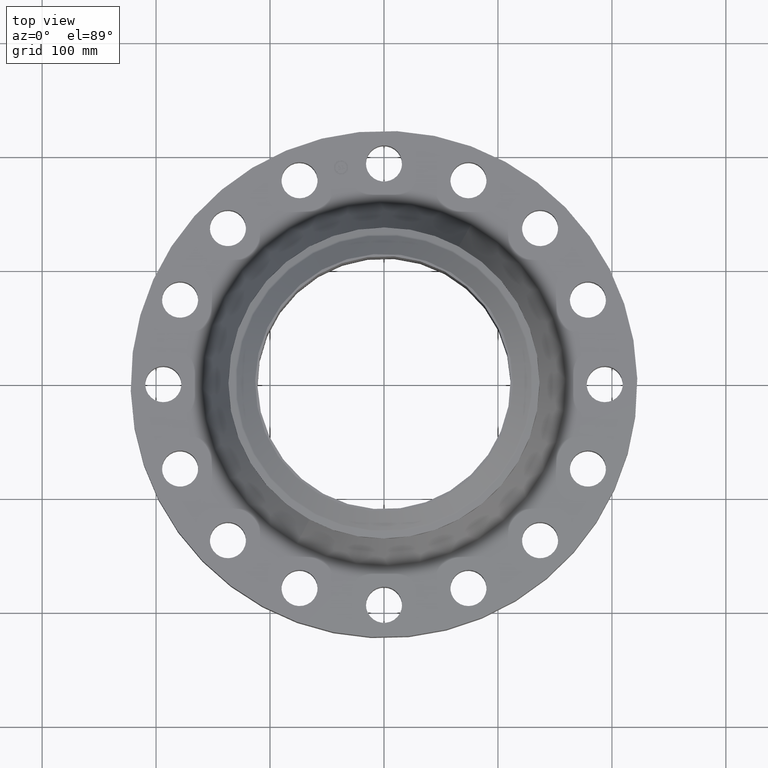
[diagram: clean part render]
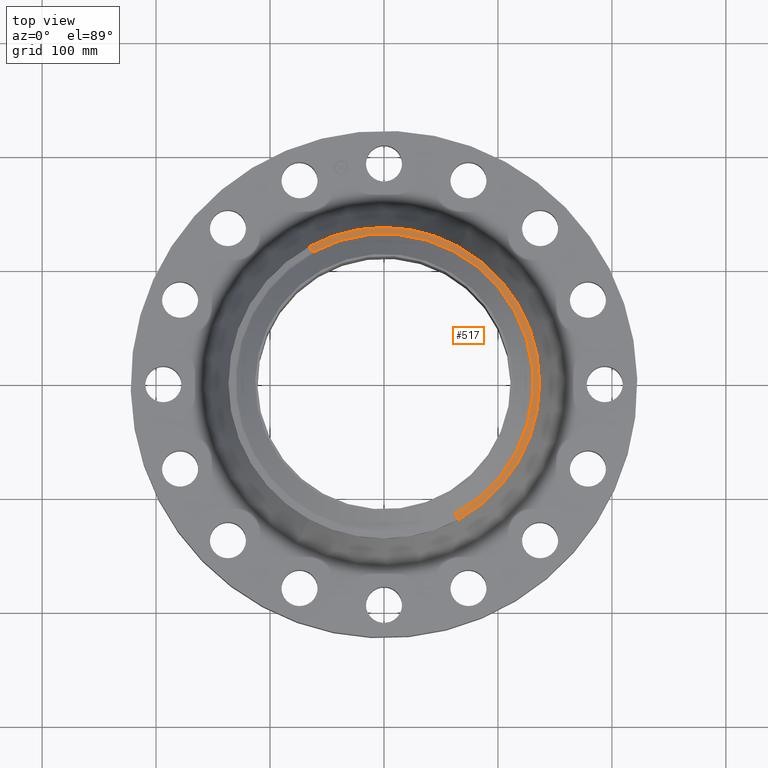
[diagram: same view with one face highlighted and labeled with its STEP entity id]
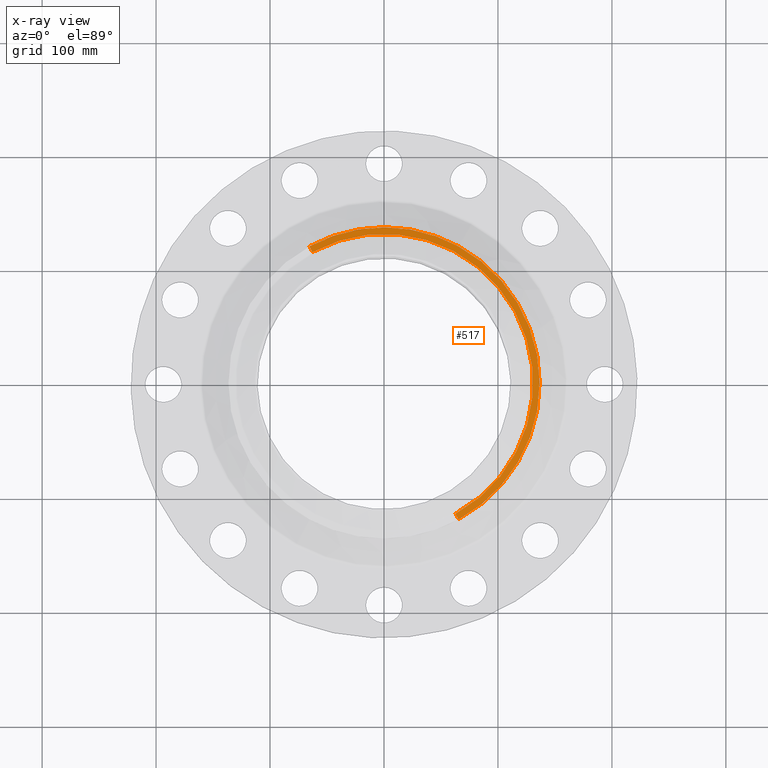
[diagram: x-ray of the same camera — body ghosted, the highlighted face saturated]
A machine part, top view. The second image highlights one B-rep face of the part: STEP entity #517.
The next image is the same camera in x-ray: the body ghosted, the highlighted face saturated — about 0% of this face is hidden behind the body in this view.
In plain terms, the highlighted conical surface has half-angle 80 deg.
Its self-contained STEP definition (entity closure, byte-faithful):
#278=AXIS2_PLACEMENT_3D('Circle Axis2P3D',#276,#277,$) ;
#305=AXIS2_PLACEMENT_3D('Circle Axis2P3D',#303,#304,$) ;
#319=AXIS2_PLACEMENT_3D('Cone Axis2P3D',#316,#317,#318) ;
#488=AXIS2_PLACEMENT_3D('Circle Axis2P3D',#486,#487,$) ;
#273=CARTESIAN_POINT('Vertex',(2.57691227001,4.71700627018,4.32200584757)) ;
#276=CARTESIAN_POINT('Axis2P3D Location',(0.,0.,4.32200584757)) ;
#280=CARTESIAN_POINT('Vertex',(2.57691227001,-4.71700627018,4.32200584757)) ;
#300=CARTESIAN_POINT('Vertex',(-2.57691227001,4.71700627018,4.32200584757)) ;
#303=CARTESIAN_POINT('Axis2P3D Location',(0.,0.,4.32200584757)) ;
#316=CARTESIAN_POINT('Axis2P3D Location',(0.,0.,4.36141601924)) ;
#321=CARTESIAN_POINT('Line Origine',(2.52333498223,-4.61893370274,4.3417109334)) ;
#325=CARTESIAN_POINT('Vertex',(2.46975769445,-4.52086113529,4.36141601924)) ;
#332=CARTESIAN_POINT('Vertex',(-2.46975769445,4.52086113529,4.36141601924)) ;
#335=CARTESIAN_POINT('Line Origine',(-2.52333498223,4.61893370274,4.3417109334)) ;
#486=CARTESIAN_POINT('Axis2P3D Location',(0.,0.,4.36141601924)) ;
#277=DIRECTION('Axis2P3D Direction',(0.,0.,-0.0393700787402)) ;
#304=DIRECTION('Axis2P3D Direction',(0.,0.,-0.0393700787402)) ;
#317=DIRECTION('Axis2P3D Direction',(-0.,-0.,-0.0393700787402)) ;
#318=DIRECTION('Axis2P3D XDirection',(-0.0188750212049,0.0345504945626,0.)) ;
#322=DIRECTION('Vector Direction',(0.0185882672208,-0.0340255949157,-0.00683654242783)) ;
#336=DIRECTION('Vector Direction',(-0.0185882672208,0.0340255949157,-0.00683654242783)) ;
#487=DIRECTION('Axis2P3D Direction',(0.,0.,0.0393700787402)) ;
#323=VECTOR('Line Direction',#322,0.0393700787402) ;
#337=VECTOR('Line Direction',#336,0.0393700787402) ;
#511=ORIENTED_EDGE('',*,*,#339,.F.) ;
#512=ORIENTED_EDGE('',*,*,#490,.F.) ;
#513=ORIENTED_EDGE('',*,*,#327,.T.) ;
#514=ORIENTED_EDGE('',*,*,#282,.T.) ;
#515=ORIENTED_EDGE('',*,*,#307,.F.) ;
#517=ADVANCED_FACE('PartBody',(#516),#320,.T.) ;
#279=CIRCLE('generated circle',#278,5.37500000002) ;
#306=CIRCLE('generated circle',#305,5.37500000002) ;
#489=CIRCLE('generated circle',#488,5.15149380994) ;
#320=CONICAL_SURFACE('Cone',#319,5.15149380994,1.3962634016) ;
#282=EDGE_CURVE('',#281,#274,#279,.F.) ;
#307=EDGE_CURVE('',#301,#274,#306,.T.) ;
#327=EDGE_CURVE('',#326,#281,#324,.T.) ;
#339=EDGE_CURVE('',#333,#301,#338,.T.) ;
#490=EDGE_CURVE('',#326,#333,#489,.T.) ;
#510=EDGE_LOOP('',(#511,#512,#513,#514,#515)) ;
#516=FACE_OUTER_BOUND('',#510,.T.) ;
#324=LINE('Line',#321,#323) ;
#338=LINE('Line',#335,#337) ;
#274=VERTEX_POINT('',#273) ;
#281=VERTEX_POINT('',#280) ;
#301=VERTEX_POINT('',#300) ;
#326=VERTEX_POINT('',#325) ;
#333=VERTEX_POINT('',#332) ;